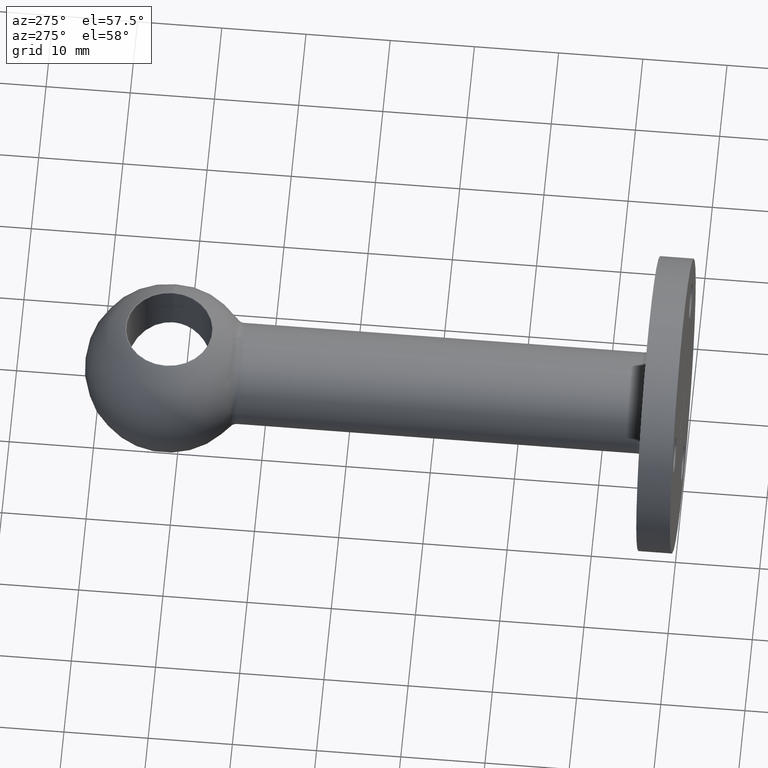
[diagram: clean part render]
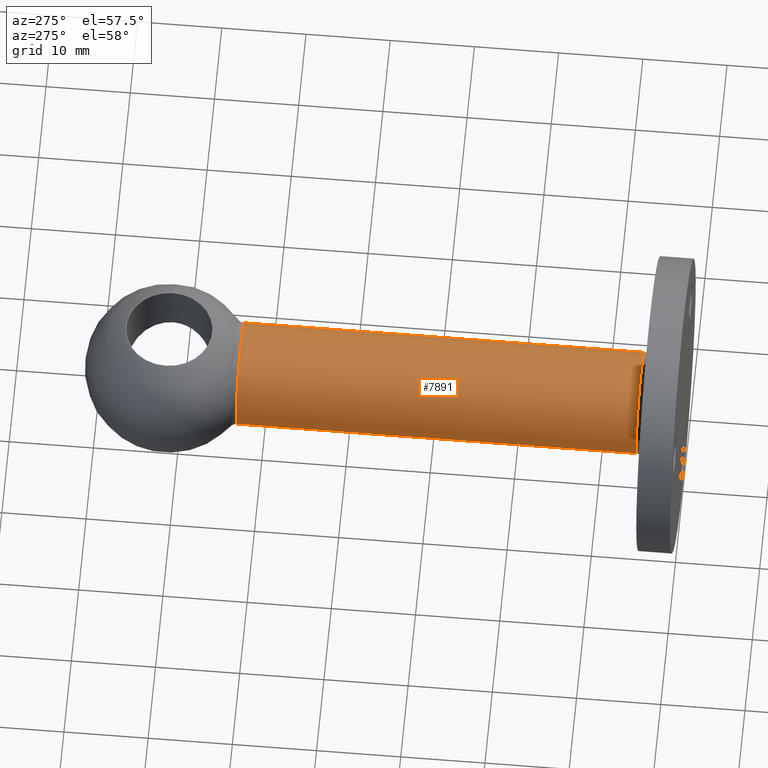
[diagram: same view with one face highlighted and labeled with its STEP entity id]
A machine part, auxiliary view. The second image highlights one B-rep face of the part: STEP entity #7891.
In plain terms, the highlighted cylindrical surface (bore or boss wall) has radius 6 mm, axis along (-0, -1, -0).
Its self-contained STEP definition (entity closure, byte-faithful):
#415 = CIRCLE ( 'NONE', #3545, 6.000000000000001776 ) ;
#654 = DIRECTION ( 'NONE',  ( 0.000000000000000000, 1.000000000000000000, 0.000000000000000000 ) ) ;
#808 = CARTESIAN_POINT ( 'NONE',  ( 0.000000000000000000, 5.000000000000000000, 0.000000000000000000 ) ) ;
#873 = CIRCLE ( 'NONE', #9180, 6.000000000000001776 ) ;
#907 = EDGE_LOOP ( 'NONE', ( #1285 ) ) ;
#1285 = ORIENTED_EDGE ( 'NONE', *, *, #6373, .T. ) ;
#2324 = CARTESIAN_POINT ( 'NONE',  ( 0.000000000000000000, 52.51471862576143224, 6.000000000000001776 ) ) ;
#2739 = DIRECTION ( 'NONE',  ( 0.000000000000000000, 0.000000000000000000, 1.000000000000000000 ) ) ;
#3077 = VERTEX_POINT ( 'NONE', #2324 ) ;
#3545 = AXIS2_PLACEMENT_3D ( 'NONE', #8912, #11878, #7112 ) ;
#3632 = AXIS2_PLACEMENT_3D ( 'NONE', #9498, #3799, #12402 ) ;
#3799 = DIRECTION ( 'NONE',  ( -0.000000000000000000, -1.000000000000000000, -0.000000000000000000 ) ) ;
#4294 = VERTEX_POINT ( 'NONE', #8225 ) ;
#4842 = EDGE_LOOP ( 'NONE', ( #12197 ) ) ;
#5666 = CYLINDRICAL_SURFACE ( 'NONE', #3632, 6.000000000000001776 ) ;
#6265 = FACE_OUTER_BOUND ( 'NONE', #4842, .T. ) ;
#6373 = EDGE_CURVE ( 'NONE', #3077, #3077, #415, .T. ) ;
#7112 = DIRECTION ( 'NONE',  ( 0.000000000000000000, 0.000000000000000000, 1.000000000000000000 ) ) ;
#7891 = ADVANCED_FACE ( 'NONE', ( #12416, #6265 ), #5666, .T. ) ;
#8225 = CARTESIAN_POINT ( 'NONE',  ( 0.000000000000000000, 5.000000000000000000, 6.000000000000001776 ) ) ;
#8912 = CARTESIAN_POINT ( 'NONE',  ( 0.000000000000000000, 52.51471862576143224, 0.000000000000000000 ) ) ;
#9180 = AXIS2_PLACEMENT_3D ( 'NONE', #808, #654, #2739 ) ;
#9498 = CARTESIAN_POINT ( 'NONE',  ( 0.000000000000000000, 0.000000000000000000, 0.000000000000000000 ) ) ;
#10140 = EDGE_CURVE ( 'NONE', #4294, #4294, #873, .T. ) ;
#11878 = DIRECTION ( 'NONE',  ( -0.000000000000000000, -1.000000000000000000, -0.000000000000000000 ) ) ;
#12197 = ORIENTED_EDGE ( 'NONE', *, *, #10140, .T. ) ;
#12402 = DIRECTION ( 'NONE',  ( 0.000000000000000000, 0.000000000000000000, -1.000000000000000000 ) ) ;
#12416 = FACE_OUTER_BOUND ( 'NONE', #907, .T. ) ;